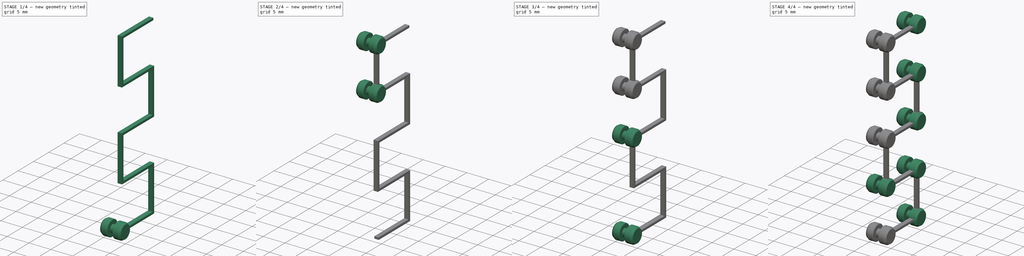
[diagram: build sequence overview — one tinted view per stage of 4, left to right]
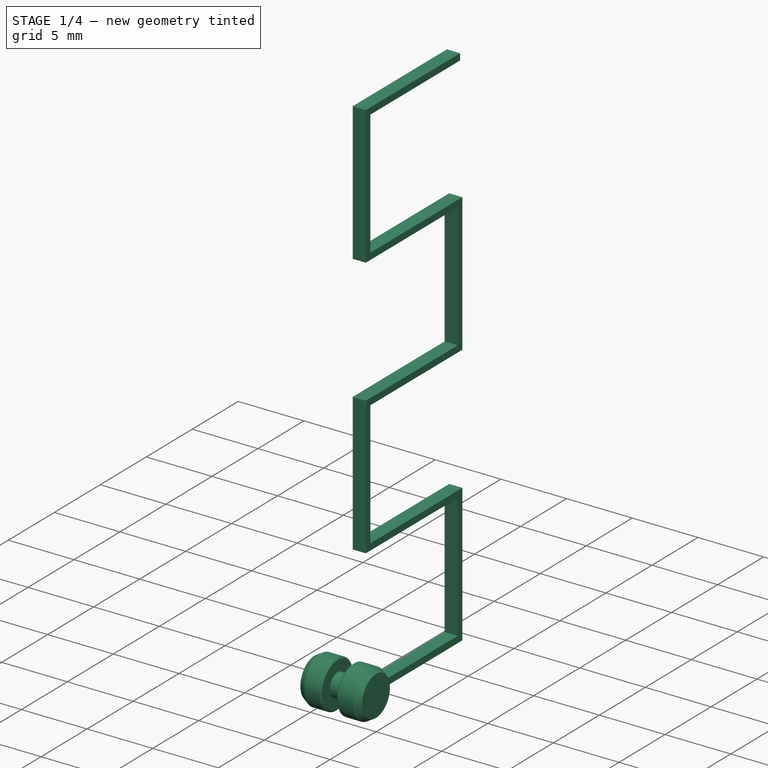
[diagram: stage 1 of 4 — iso view after this stage's code; geometry added in this stage tinted green]
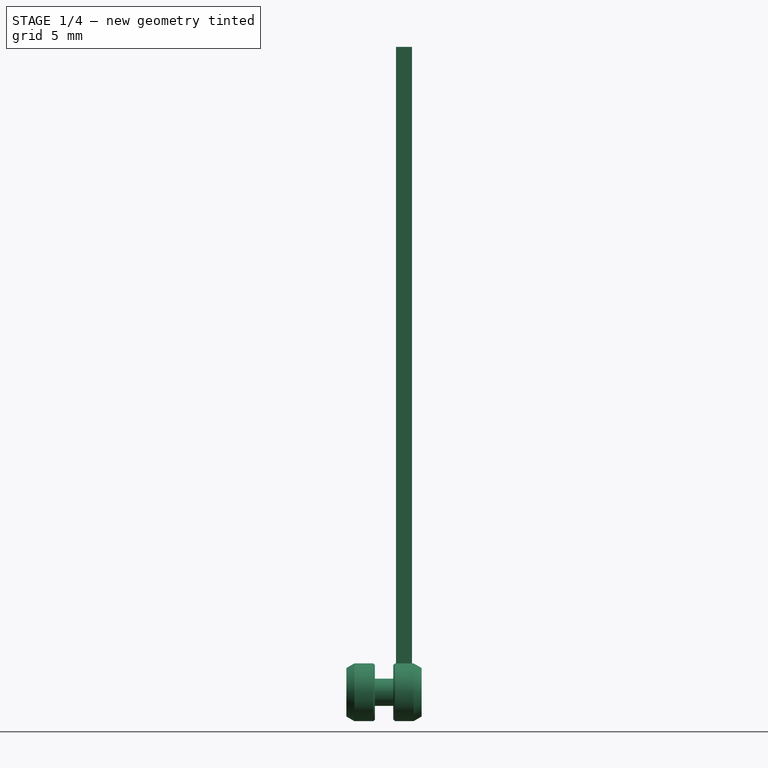
[diagram: stage 1 of 4 — front view after this stage's code; geometry added in this stage tinted green]
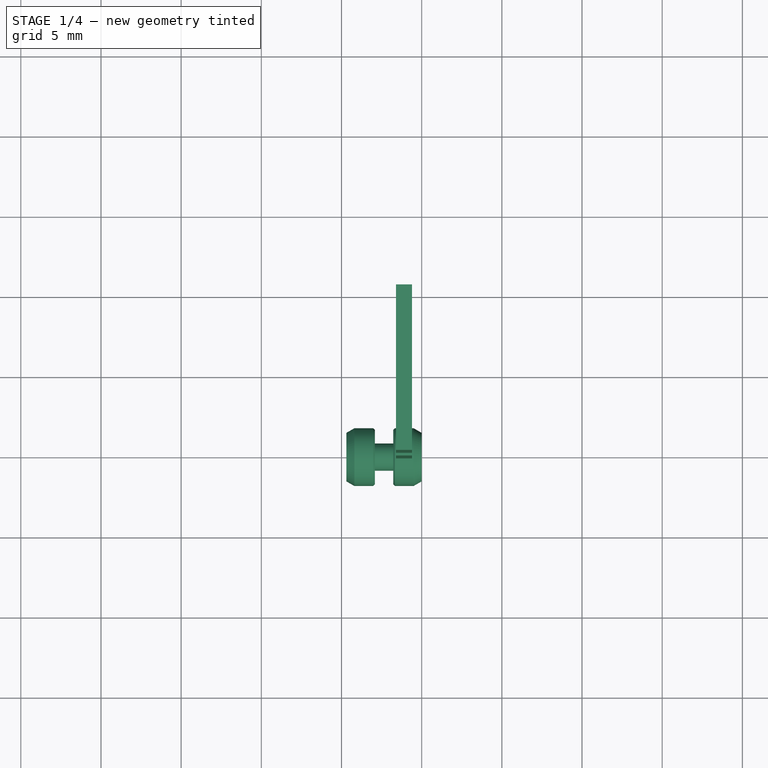
[diagram: stage 1 of 4 — top view after this stage's code; geometry added in this stage tinted green]
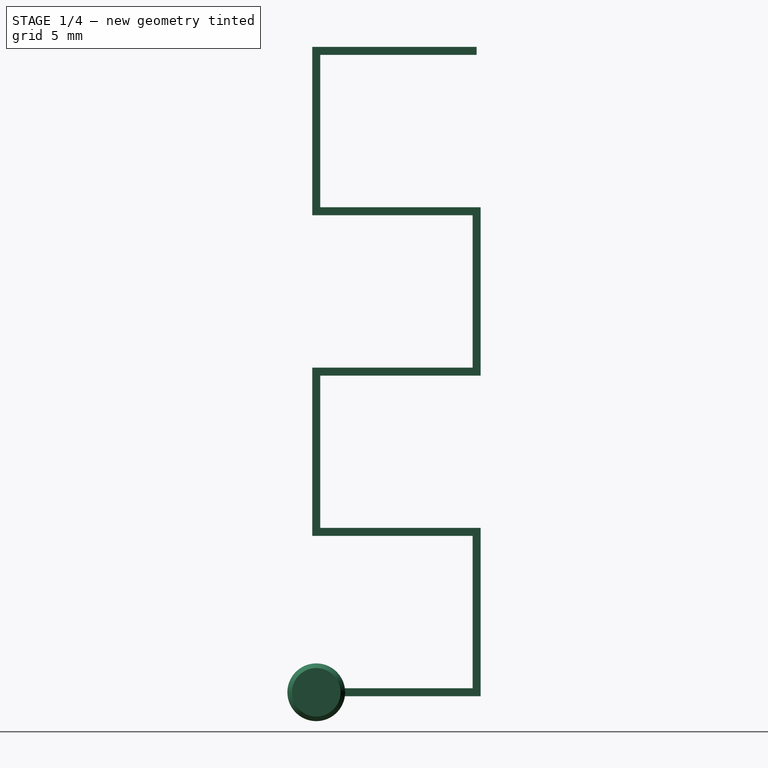
[diagram: stage 1 of 4 — right view after this stage's code; geometry added in this stage tinted green]
FCSTD DOCUMENT  (FreeCAD 1.0R39319 (Git))
Label: PLASTIC-MAPMODE_connected
License: All rights reserved
LicenseURL: https://en.wikipedia.org/wiki/All_rights_reserved
objects: PartDesign::Body×11, PartDesign::FeatureBase×9, Sketcher::SketchObject×3, PartDesign::Revolution×1, PartDesign::CoordinateSystem×1, PartDesign::Pad×1, PartDesign::Boolean×1
note: 44 computed .brp shape members not serialized (recipe doc carries the construction recipe); baked Part::Feature solids carry a one-line shape summary decoded from their .brp

FEATURE [Sketcher::SketchObject] Sketch
  ArcFitTolerance = 1e-06
  AttachmentSupport = -> [XZ_Plane]
  FullyConstrained = true
  MakeInternals = false
  MapMode = 5
  Placement = pos=(0,0,0) rot=(1,0,0;1.5708rad)
  sketch-geometry (19):
    g0: LineSegment StartX=0 StartY=0 StartZ=0 EndX=-3.0327e-12 EndY=1.51132 EndZ=0
    g1: LineSegment StartX=-0.5 StartY=1.8 StartZ=0 EndX=-1.67 EndY=1.8 EndZ=0
    g2: LineSegment StartX=-1.77 StartY=1.7 StartZ=0 EndX=-1.77 EndY=0.85 EndZ=0
    g3: LineSegment StartX=-1.77 StartY=0.85 StartZ=0 EndX=-2.92 EndY=0.85 EndZ=0
    g4: LineSegment StartX=-3.02 StartY=1.8 StartZ=0 EndX=-4.2 EndY=1.8 EndZ=0
    g5: LineSegment StartX=-4.7 StartY=1.51132 StartZ=0 EndX=-4.7 EndY=0 EndZ=0
    g6: LineSegment StartX=-4.7 StartY=0 StartZ=0 EndX=0 EndY=0 EndZ=0
    g7: LineSegment StartX=-4.7 StartY=1.51132 StartZ=0 EndX=-4.2 EndY=1.8 EndZ=0
    g8: LineSegment StartX=-2.92 StartY=0.85 StartZ=0 EndX=-2.92 EndY=1.7 EndZ=0
    g9: LineSegment StartX=-3.02 StartY=1.8 StartZ=0 EndX=-2.92 EndY=1.7 EndZ=0
    g10: LineSegment StartX=-1.67 StartY=1.8 StartZ=0 EndX=-1.77 EndY=1.7 EndZ=0
    g11: LineSegment [constr] StartX=-2.845 StartY=0 StartZ=0 EndX=-1.845 EndY=0 EndZ=0
    g12: LineSegment [constr] StartX=-1.845 StartY=0 StartZ=0 EndX=-1.845 EndY=1.8 EndZ=0
    g13: LineSegment [constr] StartX=-1.845 StartY=1.8 StartZ=0 EndX=-2.845 EndY=1.8 EndZ=0
    g14: LineSegment [constr] StartX=-2.845 StartY=1.8 StartZ=0 EndX=-2.845 EndY=0 EndZ=0
    g15: LineSegment [constr] StartX=-2.92 StartY=0.85 StartZ=0 EndX=-2.845 EndY=0 EndZ=0
    g16: LineSegment [constr] StartX=-1.845 StartY=0 StartZ=0 EndX=-1.77 EndY=0.85 EndZ=0
    g17: GeomPoint [constr] X=0 Y=1.8 Z=0
    g18: LineSegment StartX=-3.0327e-12 StartY=1.51132 StartZ=0 EndX=-0.5 EndY=1.8 EndZ=0
  constraints (55):
    c: Coincident(g0,g-1)
    c: PointOnObject(g17,g-2)
    c: Horizontal(g1)
    c: Vertical(g2)
    c: Coincident(g3,g2)
    c: Horizontal(g3)
    c: Horizontal(g4)
    c: Vertical(g5)
    c: Coincident(g6,g5)
    c: Coincident(g6,g0)
    c: Horizontal(g6)
    c: DistanceY(g0,g3) = 0.85
    c: Coincident(g4,g7)
    c: Coincident(g5,g7)
    c: DistanceX(g3,g3) = 1.15
    c: DistanceY(g0,g17) = 1.8
    c: Coincident(g8,g3)
    c: Vertical(g8)
    c: Equal(g9,g10)
    c: Angle(g4,g9) = 2.35619
    c: Angle(g10,g1) = 2.35619
    c: Coincident(g4,g9)
    c: Coincident(g8,g9)
    c: Coincident(g2,g10)
    c: Coincident(g1,g10)
    c: DistanceY(g5,g4) = 1.8
    c: Coincident(g11,g12)
    c: Coincident(g12,g13)
    c: Coincident(g13,g14)
    c: Coincident(g14,g11)
    c: Horizontal(g11)
    c: Horizontal(g13)
    c: Vertical(g12)
    c: Vertical(g14)
    c: PointOnObject(g11,g6)
    c: DistanceX(g13,g13) = 1
    c: DistanceX(g12,g2) = 0.075
    c: DistanceX(g8,g13) = 0.075
    c: Coincident(g15,g3)
    c: Coincident(g15,g11)
    c: Coincident(g16,g11)
    c: Coincident(g16,g2)
    c: Equal(g16,g15)
    c: PointOnObject(g17,g0)
    c: PointOnObject(g17,g1)
    c: Coincident(g18,g0)
    c: Coincident(g18,g1)
    c: DistanceX(g6,g6) = 4.7
    c: PointOnObject(g12,g1)
    c: DistanceX(g9,g9) = 0.1
    c: Equal(g7,g18)
    c: Angle(g7,g4) = 2.61799
    c: Angle(g1,g18) = 2.61799
    c: Distance(g5,g8) = 1.78
    c: DistanceX(g18,g18) = 0.5
FEATURE [PartDesign::Revolution] Revolution
  Angle = 360
  Angle2 = 60
  Axis = (1,0,0)
  Base = (0,0,0)
  Placement = pos=(0,0,0) rot=(1,0,0;1.5708rad)
  Profile = -> Sketch
  ReferenceAxis = -> Sketch [H_Axis]
  Refine = true
  Suppressed = false
  Type = 0
FEATURE [PartDesign::Body] Body003
  AllowCompound = false
  Group = -> [Clone002]
  Origin = -> Origin003
  Placement = pos=(0,0,30) rot=(0,0,1;0rad)
  Tip = -> Clone002
FEATURE [PartDesign::FeatureBase] Clone003
  BaseFeature = -> Body
  Suppressed = false
FEATURE [PartDesign::Body] Body010
  AllowCompound = false
  Group = -> [Clone009]
  Origin = -> Origin010
  Placement = pos=(0,10,0) rot=(0,0,1;0rad)
  Tip = -> Clone009
FEATURE [Sketcher::SketchObject] Sketch002
  ArcFitTolerance = 1e-06
  AttachmentOffset = pos=(0,0,-0.6) rot=(0,0,1;0rad)
  AttachmentSupport = -> [YZ_Plane011]
  FullyConstrained = true
  MakeInternals = false
  MapMode = 5
  Placement = pos=(-0.6,0,0) rot=(0.57735,0.57735,0.57735;2.0944rad)
  sketch-geometry (37):
    g0: LineSegment StartX=0 StartY=-0.25 StartZ=0 EndX=10.25 EndY=-0.25 EndZ=0
    g1: LineSegment StartX=10 StartY=40.25 StartZ=0 EndX=-0.25 EndY=40.25 EndZ=0
    g2: LineSegment StartX=10 StartY=39.75 StartZ=0 EndX=0.25 EndY=39.75 EndZ=0
    g3: LineSegment StartX=0.25 StartY=39.75 StartZ=0 EndX=0.25 EndY=30.25 EndZ=0
    g4: LineSegment StartX=0 StartY=0.25 StartZ=0 EndX=9.75 EndY=0.25 EndZ=0
    g5: LineSegment StartX=9.75 StartY=0.25 StartZ=0 EndX=9.75 EndY=9.75 EndZ=0
    g6: LineSegment [constr] StartX=0 StartY=40 StartZ=0 EndX=0 EndY=0 EndZ=0
    g7: LineSegment [constr] StartX=0 StartY=0 StartZ=0 EndX=10 EndY=0 EndZ=0
    g8: LineSegment [constr] StartX=10 StartY=0 StartZ=0 EndX=10 EndY=40 EndZ=0
    g9: LineSegment [constr] StartX=10 StartY=40 StartZ=0 EndX=0 EndY=40 EndZ=0
    g10: LineSegment [constr] StartX=9.75 StartY=0.25 StartZ=0 EndX=10 EndY=0.25 EndZ=0
    g11: LineSegment [constr] StartX=10 StartY=0.25 StartZ=0 EndX=10.25 EndY=0.25 EndZ=0
    g12: LineSegment [constr] StartX=0.25 StartY=39.75 StartZ=0 EndX=0.25 EndY=40 EndZ=0
    g13: LineSegment [constr] StartX=0.25 StartY=40 StartZ=0 EndX=0.25 EndY=40.25 EndZ=0
    g14: LineSegment [constr] StartX=10 StartY=10 StartZ=0 EndX=0 EndY=10 EndZ=0
    g15: LineSegment [constr] StartX=10 StartY=20 StartZ=0 EndX=0 EndY=20 EndZ=0
    g16: LineSegment [constr] StartX=10 StartY=30 StartZ=0 EndX=0 EndY=30 EndZ=0
    g17: LineSegment StartX=9.75 StartY=9.75 StartZ=0 EndX=-0.25 EndY=9.75 EndZ=0
    g18: LineSegment StartX=10.25 StartY=19.75 StartZ=0 EndX=0.25 EndY=19.75 EndZ=0
    g19: LineSegment StartX=9.75 StartY=20.25 StartZ=0 EndX=-0.25 EndY=20.25 EndZ=0
    g20: LineSegment StartX=9.75 StartY=29.75 StartZ=0 EndX=-0.25 EndY=29.75 EndZ=0
    g21: LineSegment StartX=10.25 StartY=30.25 StartZ=0 EndX=0.25 EndY=30.25 EndZ=0
    g22: LineSegment StartX=9.75 StartY=20.25 StartZ=0 EndX=9.75 EndY=29.75 EndZ=0
    g23: LineSegment StartX=0.25 StartY=19.75 StartZ=0 EndX=0.25 EndY=10.25 EndZ=0
    g24: LineSegment [constr] StartX=9.75 StartY=10.25 StartZ=0 EndX=9.75 EndY=10 EndZ=0
    g25: LineSegment [constr] StartX=9.75 StartY=10 StartZ=0 EndX=9.75 EndY=9.75 EndZ=0
    g26: LineSegment [constr] StartX=9.75 StartY=20.25 StartZ=0 EndX=9.75 EndY=20 EndZ=0
    g27: LineSegment StartX=10.25 StartY=-0.25 StartZ=0 EndX=10.25 EndY=10.25 EndZ=0
    g28: LineSegment StartX=10.25 StartY=10.25 StartZ=0 EndX=0.25 EndY=10.25 EndZ=0
    g29: LineSegment StartX=-0.25 StartY=9.75 StartZ=0 EndX=-0.25 EndY=20.25 EndZ=0
    g30: LineSegment StartX=10.25 StartY=19.75 StartZ=0 EndX=10.25 EndY=30.25 EndZ=0
    g31: LineSegment StartX=-0.25 StartY=29.75 StartZ=0 EndX=-0.25 EndY=40.25 EndZ=0
    g32: LineSegment StartX=10 StartY=39.75 StartZ=0 EndX=10 EndY=40.25 EndZ=0
    g33: LineSegment StartX=0 StartY=0.25 StartZ=0 EndX=0 EndY=0 EndZ=0
    g34: LineSegment StartX=0 StartY=0 StartZ=0 EndX=0 EndY=-0.25 EndZ=0
    g35: LineSegment [constr] StartX=0.25 StartY=10.25 StartZ=0 EndX=0 EndY=10.25 EndZ=0
    g36: LineSegment [constr] StartX=0 StartY=10.25 StartZ=0 EndX=-0.25 EndY=10.25 EndZ=0
  constraints (111):
    c: Horizontal(g0)
    c: Horizontal(g1)
    c: Coincident(g2,g3)
    c: Coincident(g4,g5)
    c: Horizontal(g2)
    c: Horizontal(g4)
    c: Vertical(g3)
    c: Vertical(g5)
    c: PointOnObject(g6,g-2)
    c: Coincident(g6,g-1)
    c: Coincident(g7,g6)
    c: PointOnObject(g7,g-1)
    c: Coincident(g8,g7)
    c: Vertical(g8)
    c: Coincident(g9,g8)
    c: Coincident(g9,g6)
    c: Horizontal(g9)
    c: DistanceX(g7,g7) = 10
    c: DistanceY(g8,g8) = 40
    c: Coincident(g10,g4)
    c: PointOnObject(g10,g8)
    c: Coincident(g11,g10)
    c: Horizontal(g11)
    c: Horizontal(g10)
    c: Coincident(g12,g2)
    c: PointOnObject(g12,g9)
    c: Vertical(g12)
    c: Coincident(g13,g12)
    c: Vertical(g13)
    c: PointOnObject(g13,g1)
    c: PointOnObject(g14,g8)
    c: PointOnObject(g14,g6)
    c: Horizontal(g14)
    c: Symmetric(g8,g8,g15)
    c: Symmetric(g6,g6,g15)
    c: PointOnObject(g16,g8)
    c: PointOnObject(g16,g6)
    c: Horizontal(g16)
    c: Distance(g14,g7) = 10
    c: Distance(g16,g15) = 10
    c: Horizontal(g17)
    c: Horizontal(g18)
    c: Horizontal(g19)
    c: Horizontal(g20)
    c: Horizontal(g21)
    c: PointOnObject(g19,g22)
    c: Coincident(g5,g17)
    c: PointOnObject(g22,g19)
    c: Coincident(g23,g18)
    c: Coincident(g22,g20)
    c: Coincident(g3,g21)
    c: PointOnObject(g24,g14)
    c: Coincident(g25,g24)
    c: Coincident(g25,g5)
    c: Vertical(g24)
    c: Vertical(g25)
    c: Equal(g25,g24)
    c: Vertical(g23)
    c: Vertical(g22)
    c: Equal(g19,g18)
    c: Equal(g19,g21)
    c: Coincident(g26,g19)
    c: PointOnObject(g26,g15)
    c: Vertical(g26)
    c: Coincident(g27,g0)
    c: Vertical(g27)
    c: Coincident(g28,g27)
    c: Coincident(g28,g23)
    c: Horizontal(g28)
    c: Vertical(g29)
    c: Vertical(g30)
    c: Coincident(g31,g1)
    c: Vertical(g31)
    c: Coincident(g32,g2)
    c: Coincident(g32,g1)
    c: PointOnObject(g8,g32)
    c: Vertical(g32)
    c: Coincident(g20,g31)
    c: Coincident(g21,g30)
    c: Coincident(g30,g18)
    c: Coincident(g19,g29)
    c: Coincident(g17,g29)
    c: PointOnObject(g0,g-2)
    c: Distance(g7,g4) = 0.25
    c: PointOnObject(g11,g27)
    c: Coincident(g33,g4)
    c: Coincident(g33,g6)
    c: Vertical(g33)
    c: Coincident(g34,g6)
    c: Coincident(g34,g0)
    c: Equal(g34,g33)
    c: Equal(g33,g11)
    c: Equal(g11,g10)
    c: PointOnObject(g24,g28)
    c: Equal(g25,g11)
    c: Coincident(g35,g23)
    c: PointOnObject(g35,g6)
    c: Horizontal(g35)
    c: Coincident(g36,g35)
    c: PointOnObject(g36,g29)
    c: Horizontal(g36)
    c: Equal(g35,g33)
    c: Equal(g36,g34)
    c: Equal(g23,g5)
    c: Equal(g27,g29)
    c: Equal(g18,g28)
    c: Equal(g23,g22)
    c: Equal(g30,g29)
    c: Equal(g20,g19)
    c: Equal(g31,g29)
    c: Equal(g3,g22)
FEATURE [PartDesign::Pad] Pad
  Direction = (1,0,0)
  Length = 1
  Length2 = 10
  Placement = pos=(0,0,0) rot=(1,1,1;2.0944rad)
  Profile = -> Sketch002
  ReferenceAxis = -> Sketch002 [N_Axis]
  Refine = true
  Reversed = true
  Suppressed = false
  Type = 0
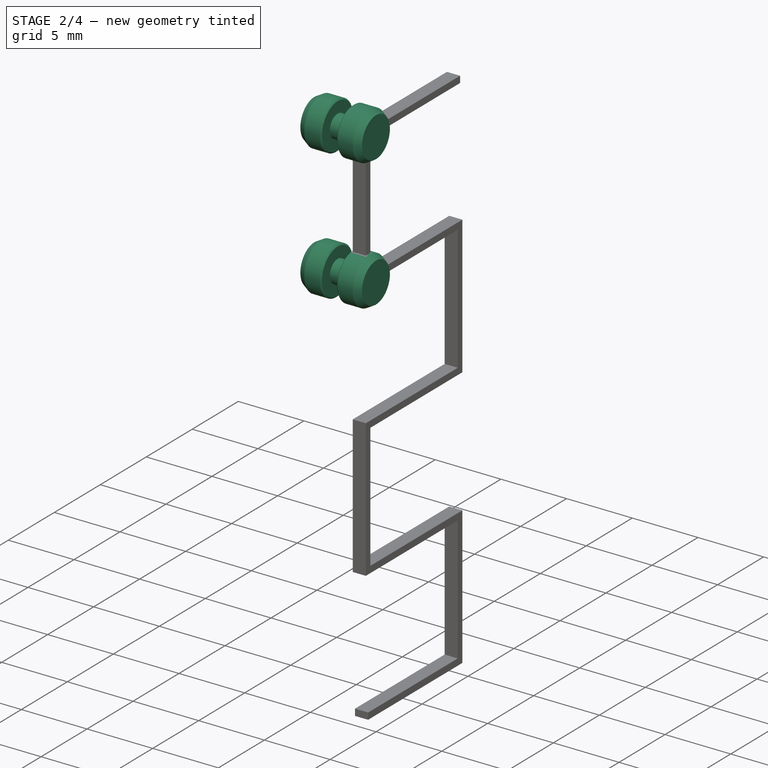
[diagram: stage 2 of 4 — iso view after this stage's code; geometry added in this stage tinted green]
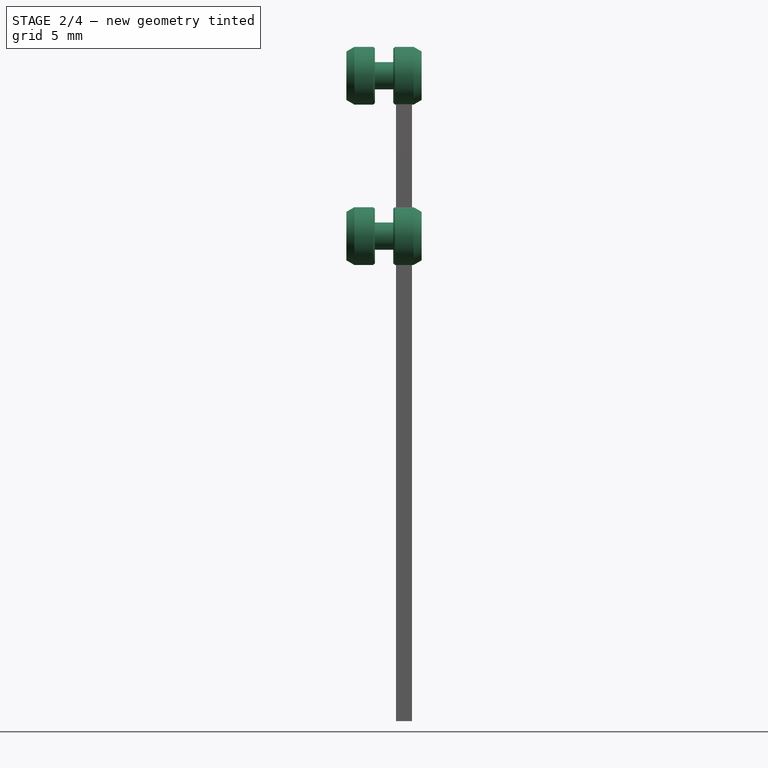
[diagram: stage 2 of 4 — front view after this stage's code; geometry added in this stage tinted green]
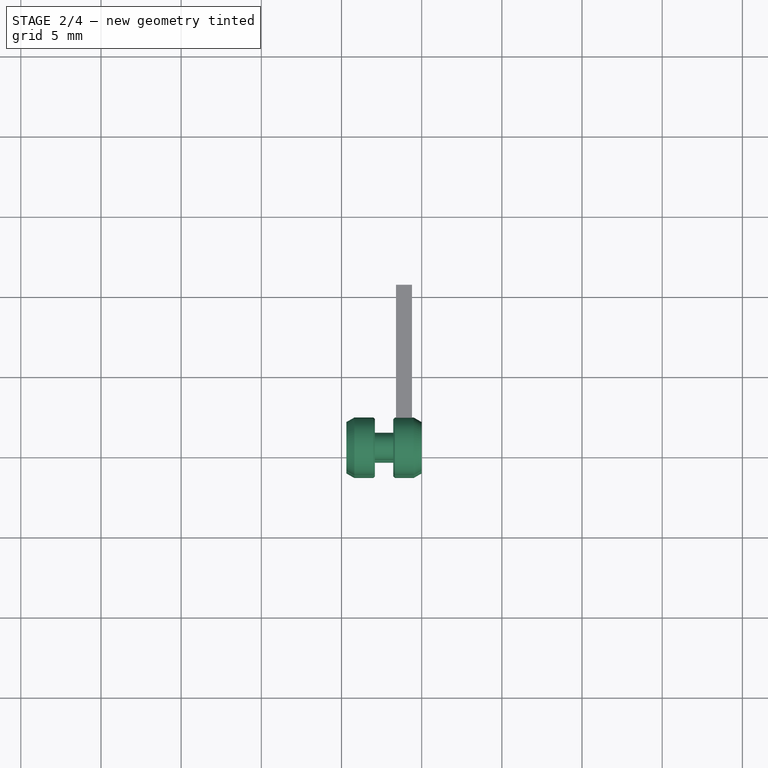
[diagram: stage 2 of 4 — top view after this stage's code; geometry added in this stage tinted green]
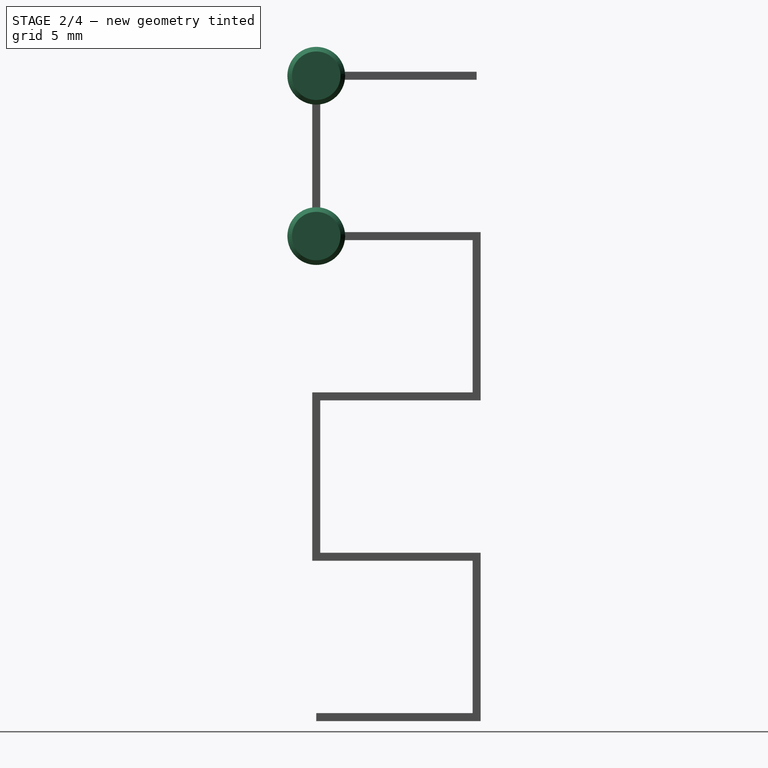
[diagram: stage 2 of 4 — right view after this stage's code; geometry added in this stage tinted green]
FEATURE [PartDesign::Body] Body002
  AllowCompound = false
  Group = -> [Clone001]
  Origin = -> Origin002
  Placement = pos=(0,0,20) rot=(0,0,1;0rad)
  Tip = -> Clone001
FEATURE [PartDesign::FeatureBase] Clone002
  BaseFeature = -> Body
  Suppressed = false
FEATURE [PartDesign::Body] Body008
  AllowCompound = false
  Group = -> [Clone007]
  Origin = -> Origin008
  Placement = pos=(0,10,0) rot=(0,0,1;0rad)
  Tip = -> Clone007
FEATURE [PartDesign::FeatureBase] Clone008
  BaseFeature = -> Body003
  Placement = pos=(0,0,30) rot=(0,0,1;0rad)
  Suppressed = false
FEATURE [PartDesign::Body] Body009
  AllowCompound = false
  Group = -> [Clone008]
  Origin = -> Origin009
  Placement = pos=(0,10,0) rot=(0,0,1;0rad)
  Tip = -> Clone008
FEATURE [PartDesign::FeatureBase] Clone009
  BaseFeature = -> Body004
  Placement = pos=(0,0,40) rot=(0,0,1;0rad)
  Suppressed = false
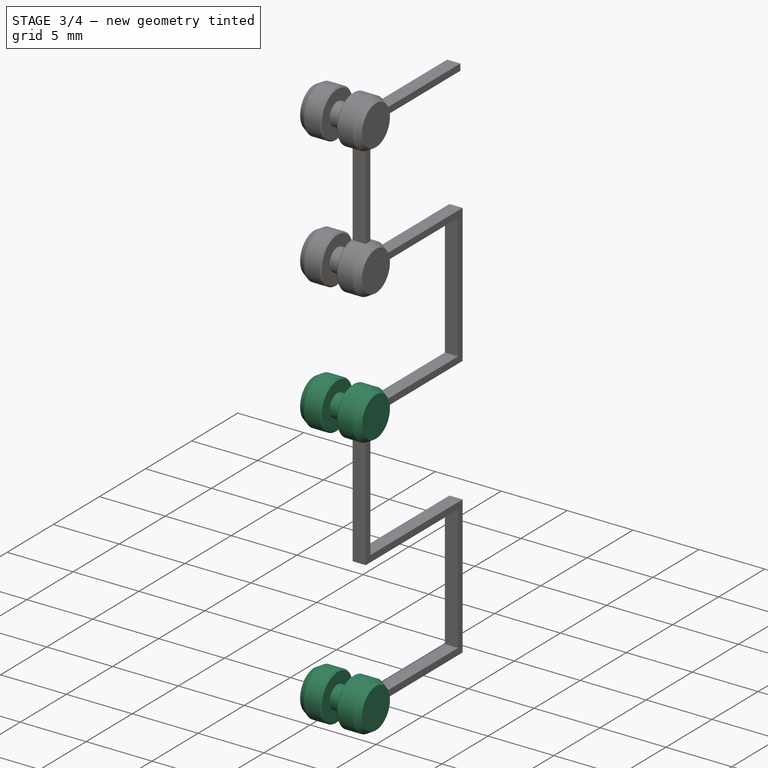
[diagram: stage 3 of 4 — iso view after this stage's code; geometry added in this stage tinted green]
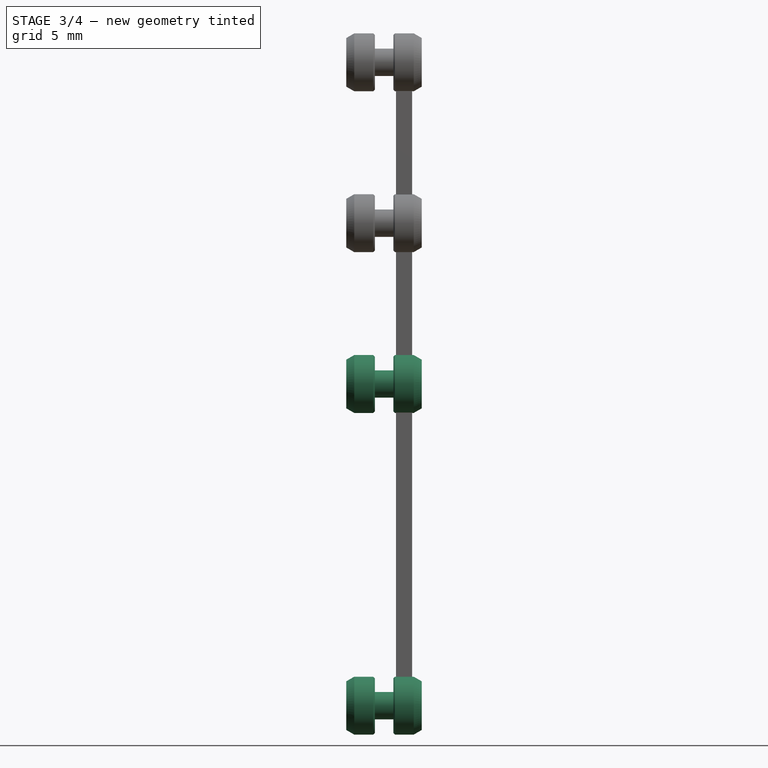
[diagram: stage 3 of 4 — front view after this stage's code; geometry added in this stage tinted green]
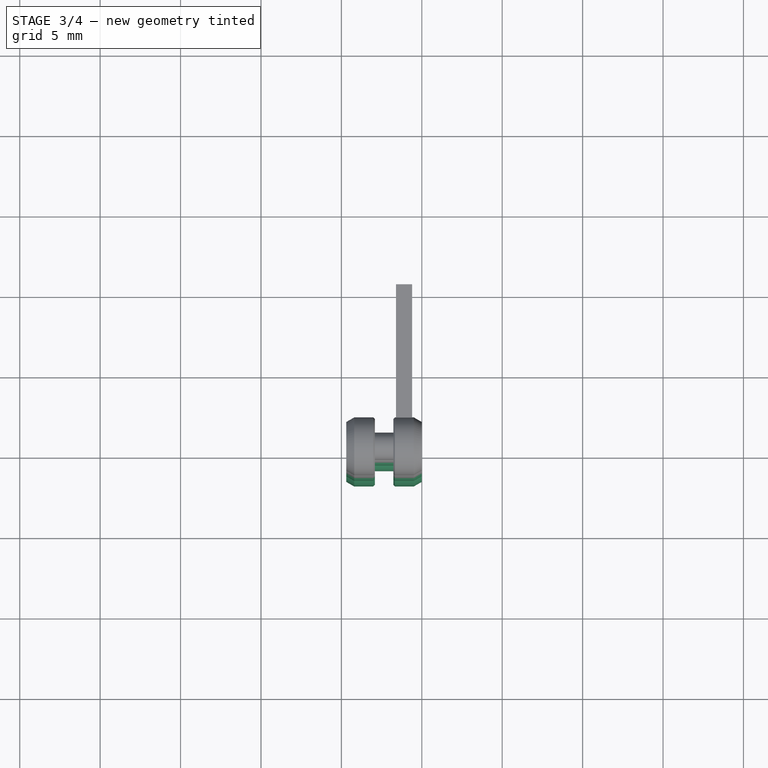
[diagram: stage 3 of 4 — top view after this stage's code; geometry added in this stage tinted green]
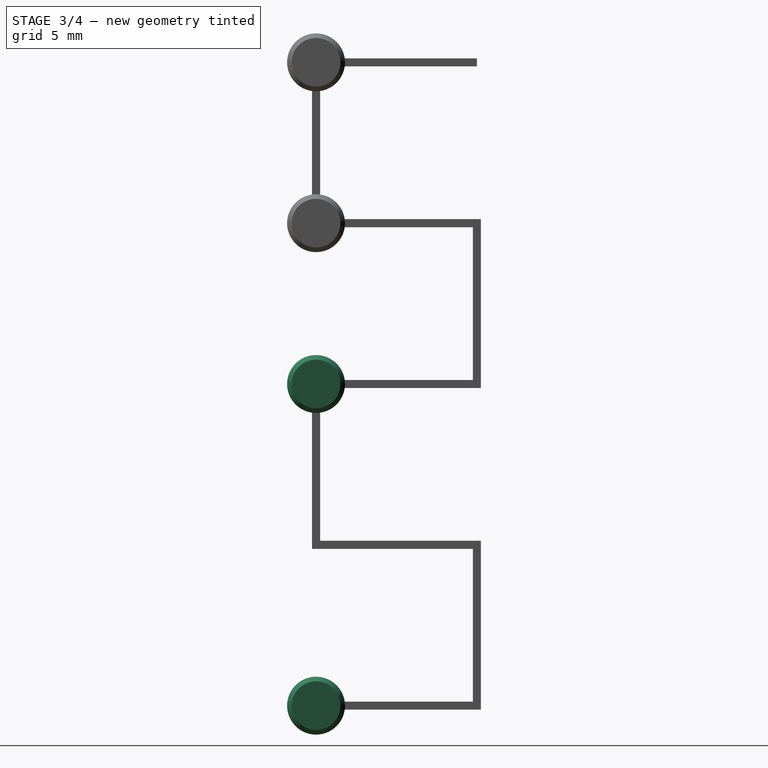
[diagram: stage 3 of 4 — right view after this stage's code; geometry added in this stage tinted green]
FEATURE [Sketcher::SketchObject] Sketch001
  ArcFitTolerance = 1e-06
  AttachmentSupport = -> [XY_Plane]
  FullyConstrained = true
  MakeInternals = false
  MapMode = 5
  sketch-geometry (4):
    g0: LineSegment StartX=-6 StartY=-1.7 StartZ=0 EndX=-6 EndY=-3.7 EndZ=0
    g1: LineSegment StartX=-6 StartY=-3.7 StartZ=0 EndX=0 EndY=-3.7 EndZ=0
    g2: LineSegment StartX=0 StartY=-3.7 StartZ=0 EndX=0 EndY=-1.7 EndZ=0
    g3: LineSegment StartX=0 StartY=-1.7 StartZ=0 EndX=-6 EndY=-1.7 EndZ=0
  constraints (12):
    c: Coincident(g0,g1)
    c: Coincident(g1,g2)
    c: Coincident(g2,g3)
    c: Coincident(g3,g0)
    c: Vertical(g0)
    c: Vertical(g2)
    c: Horizontal(g1)
    c: Horizontal(g3)
    c: PointOnObject(g1,g-2)
    c: DistanceY(g2,g2) = 2
    c: DistanceY(g2,g-1) = 1.7
    c: DistanceX(g3,g3) = 6
FEATURE [PartDesign::CoordinateSystem] LCS_1
  AttacherType = Attacher::AttachEngine3D
  MapMode = 45
  Placement = pos=(-2.35,1e-16,-4e-16) rot=(0.57735,0.57735,0.57735;2.0944rad)
FEATURE [PartDesign::Body] Body  label="PLASTIC-MAPMODE"
  AllowCompound = false
  Group = -> [Sketch,Revolution,Sketch001,LCS_1]
  Origin = -> Origin
  Tip = -> Revolution
FEATURE [PartDesign::FeatureBase] Clone
  BaseFeature = -> Body
  Suppressed = false
FEATURE [PartDesign::Body] Body001
  AllowCompound = false
  Group = -> [Clone]
  Origin = -> Origin001
  Placement = pos=(0,0,10) rot=(0,0,1;0rad)
  Tip = -> Clone
FEATURE [PartDesign::FeatureBase] Clone001
  BaseFeature = -> Body
  Suppressed = false
FEATURE [PartDesign::Body] Body007
  AllowCompound = false
  Group = -> [Clone006]
  Origin = -> Origin007
  Placement = pos=(0,10,0) rot=(0,0,1;0rad)
  Tip = -> Clone006
FEATURE [PartDesign::FeatureBase] Clone007
  BaseFeature = -> Body002
  Placement = pos=(0,0,20) rot=(0,0,1;0rad)
  Suppressed = false
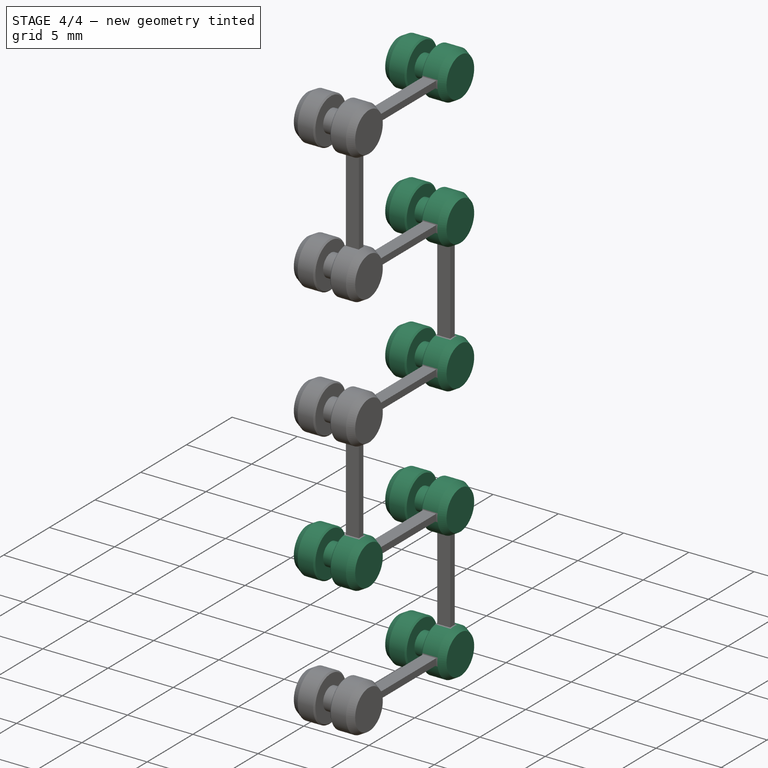
[diagram: stage 4 of 4 — iso view after this stage's code; geometry added in this stage tinted green]
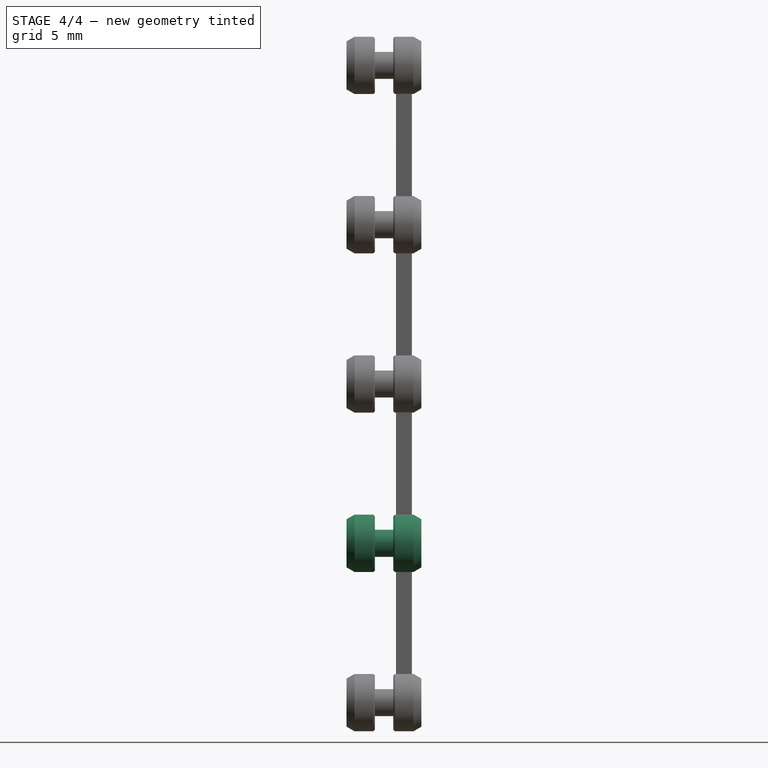
[diagram: stage 4 of 4 — front view after this stage's code; geometry added in this stage tinted green]
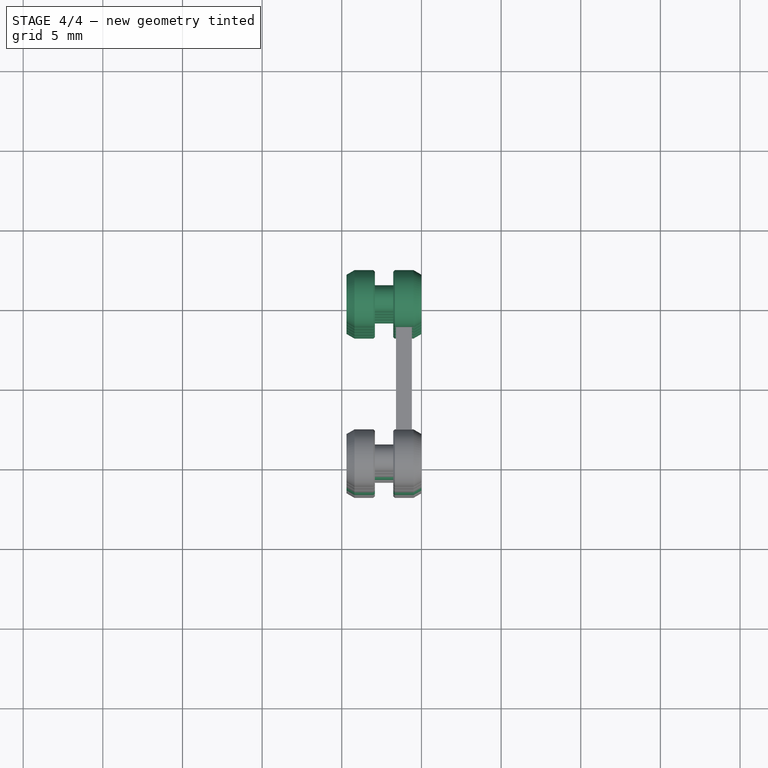
[diagram: stage 4 of 4 — top view after this stage's code; geometry added in this stage tinted green]
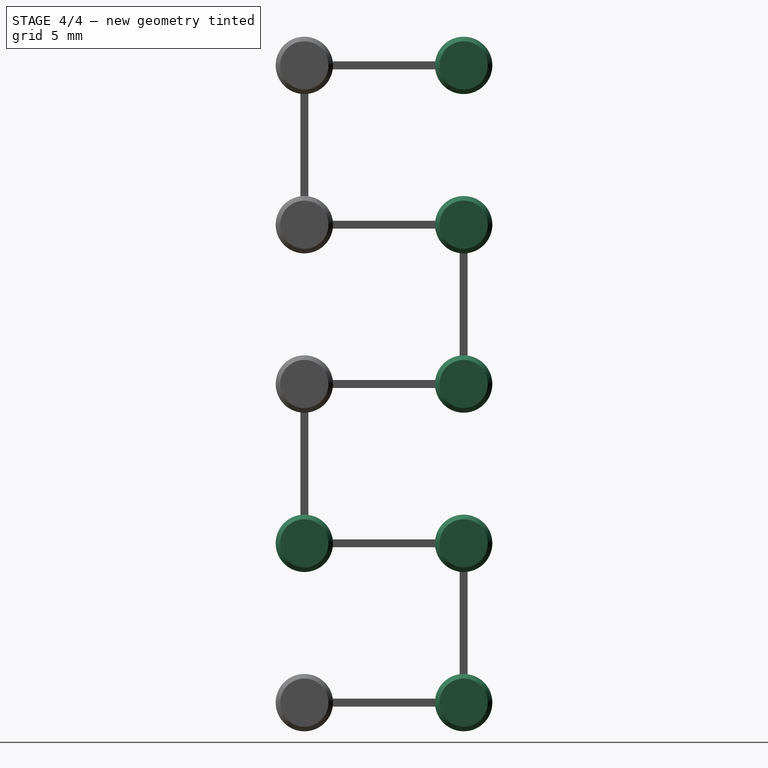
[diagram: stage 4 of 4 — right view after this stage's code; geometry added in this stage tinted green]
FEATURE [PartDesign::Body] Body004
  AllowCompound = false
  Group = -> [Clone003]
  Origin = -> Origin004
  Placement = pos=(0,0,40) rot=(0,0,1;0rad)
  Tip = -> Clone003
FEATURE [PartDesign::FeatureBase] Clone005
  BaseFeature = -> Body
  Suppressed = false
FEATURE [PartDesign::Body] Body006
  AllowCompound = false
  Group = -> [Clone005]
  Origin = -> Origin006
  Placement = pos=(0,10,0) rot=(0,0,1;0rad)
  Tip = -> Clone005
FEATURE [PartDesign::FeatureBase] Clone006
  BaseFeature = -> Body001
  Placement = pos=(0,0,10) rot=(0,0,1;0rad)
  Suppressed = false
FEATURE [PartDesign::Boolean] Boolean
  BaseFeature = -> Pad
  Group = -> [Body010,Body009,Body008,Body006,Body007,Body004,Body002,Body003,Body001,Body]
  Refine = true
  Suppressed = false
  Type = 0
  UsePlacement = true
FEATURE [PartDesign::Body] Body011  label="PLASTIC-MAPMODE001"
  AllowCompound = false
  Group = -> [Sketch002,Pad,Boolean]
  Origin = -> Origin011
  Tip = -> Boolean
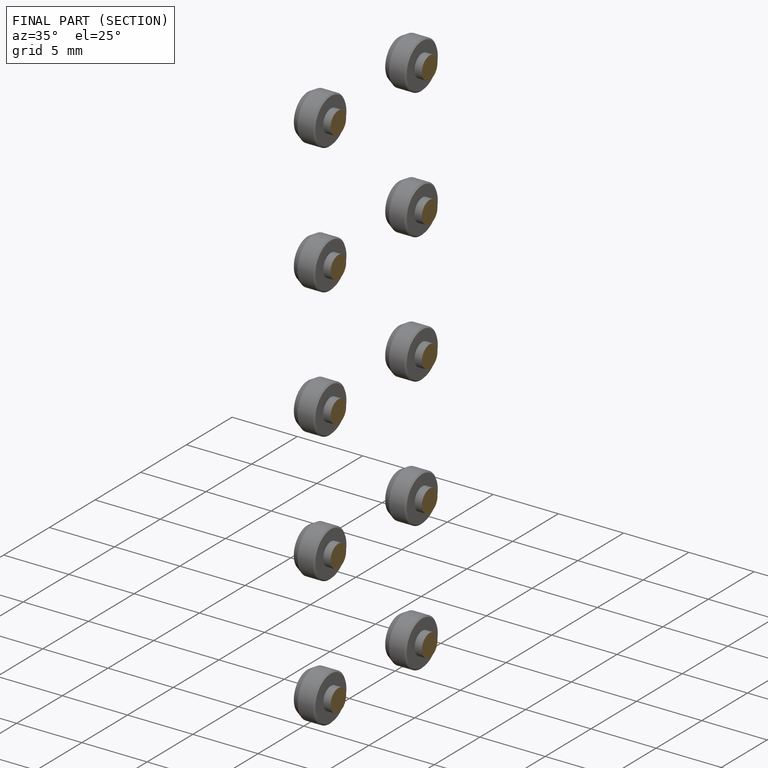
[diagram: finished part — half-section view (interior)]
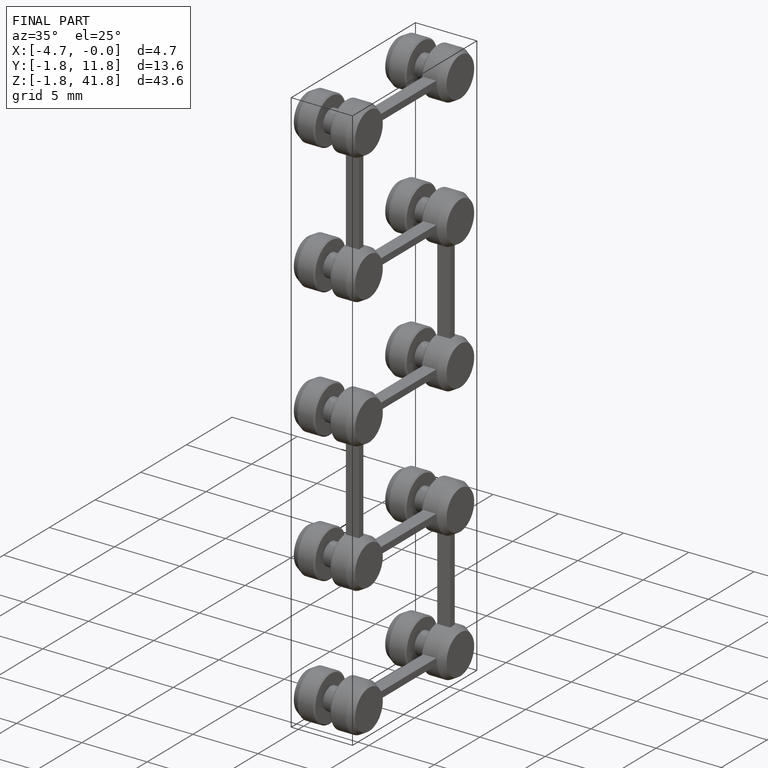
[diagram: finished part — iso view with bounding-box wireframe]
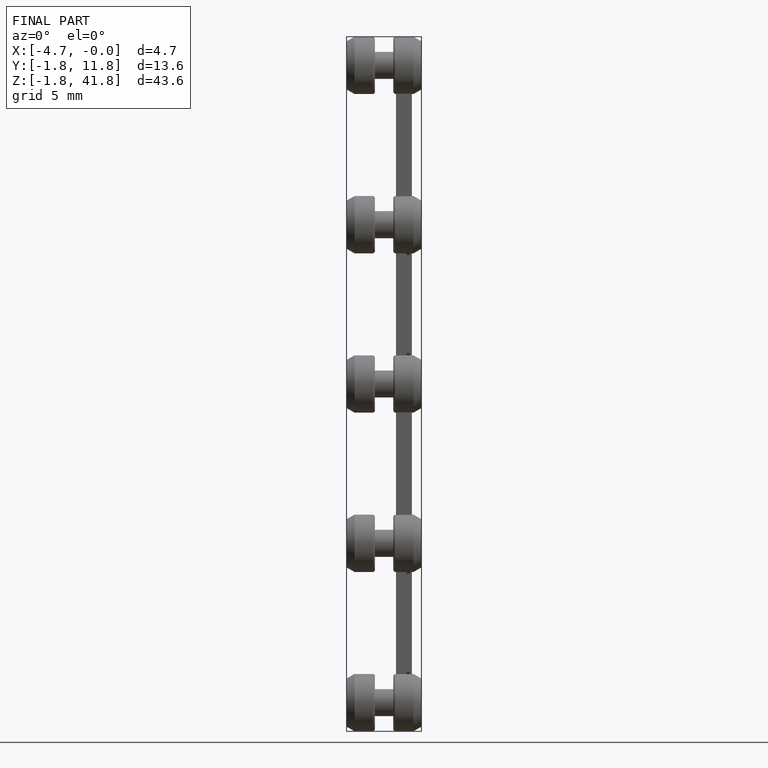
[diagram: finished part — front view with bounding-box wireframe]
